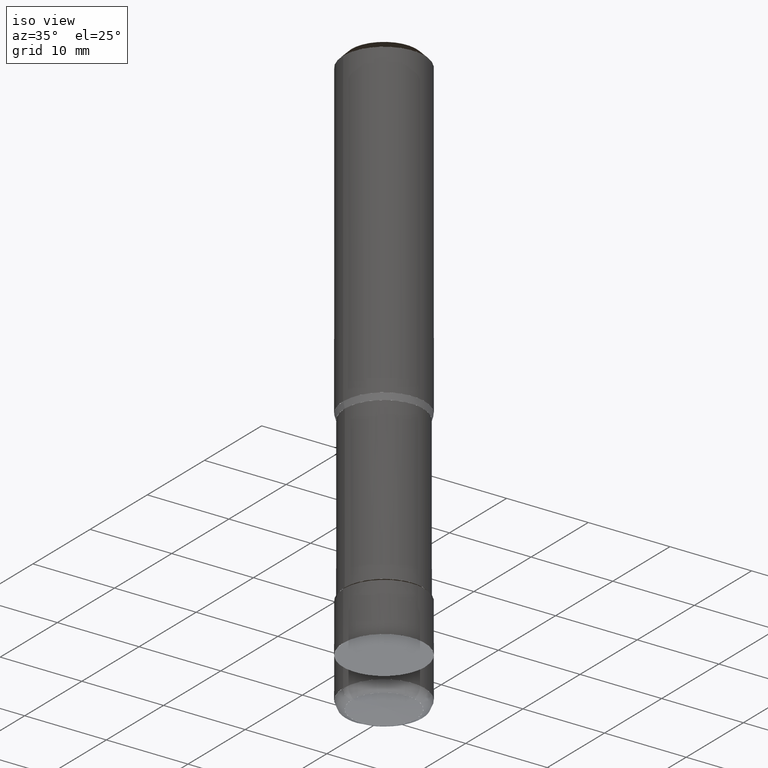
[diagram: clean part render]
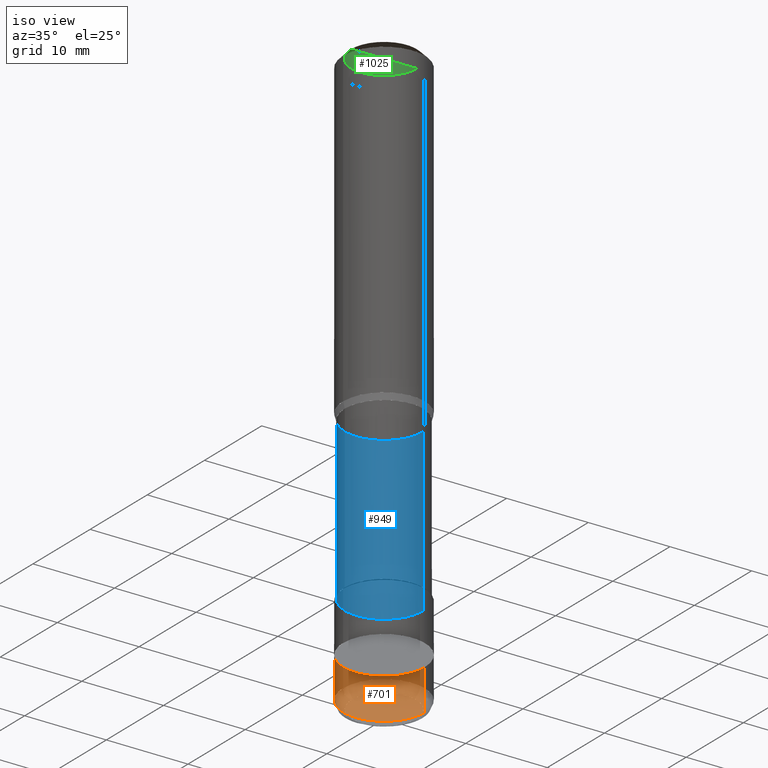
[diagram: same view with three faces highlighted in distinct colors, each labeled with its STEP entity id]
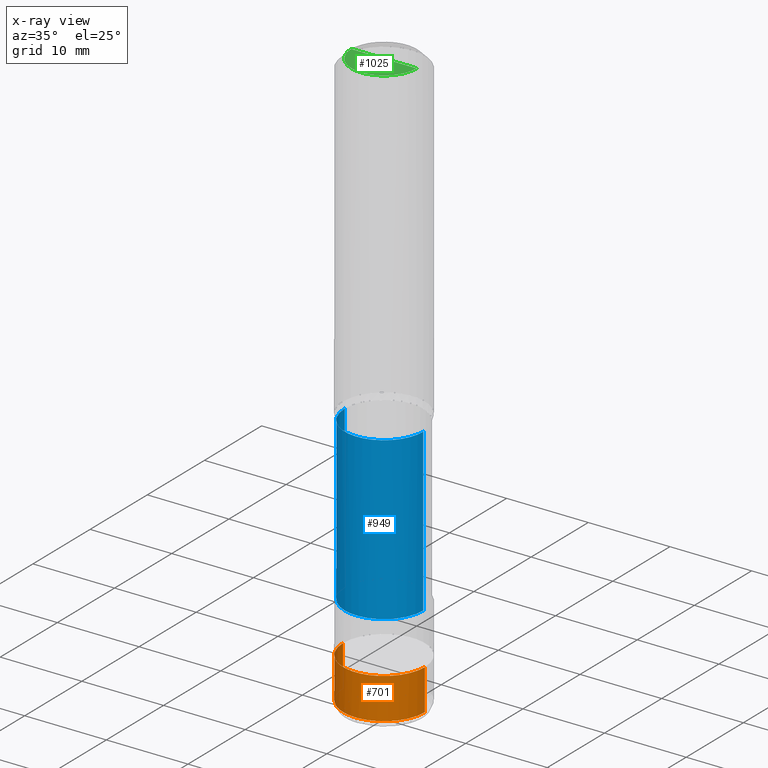
[diagram: x-ray of the same camera — body ghosted, the three highlighted faces saturated]
A machine part, iso view with three faces highlighted in distinct colors.
The next image is the same camera in x-ray (body ghosted, the three faces saturated) — at least one of them is partly hidden behind the body in this view.
Their STEP definitions:

[orange] entity #701 — the highlighted face is a freeform B-spline surface patch.
#489=CARTESIAN_POINT('',(5.0,0.0,-31.748410161514));
#493=CARTESIAN_POINT('',(-5.0,0.0,-31.748410161514));
#494=CARTESIAN_POINT('',(5.0,0.0,-26.746410161514));
#498=CARTESIAN_POINT('',(-5.0,0.0,-26.746410161514));
#512=CARTESIAN_POINT('',(-5.0,-5.0,-31.748410161514));
#513=CARTESIAN_POINT('',(0.0,-5.0,-31.748410161514));
#514=CARTESIAN_POINT('',(5.0,-5.0,-31.748410161514));
#515=CARTESIAN_POINT('',(-5.0,-5.0,-26.746410161514));
#516=CARTESIAN_POINT('',(0.0,-5.0,-26.746410161514));
#517=CARTESIAN_POINT('',(5.0,-5.0,-26.746410161514));
#682=(
BOUNDED_SURFACE()
B_SPLINE_SURFACE(1,2,(
(#493,#512,#513,#514,#489),
(#498,#515,#516,#517,#494)
), .UNSPECIFIED.,.F.,.F.,.F.)
B_SPLINE_SURFACE_WITH_KNOTS((2,2),(3,2,3),(
0.0,1.0),(
0.0,0.5,1.0), .UNSPECIFIED.)
GEOMETRIC_REPRESENTATION_ITEM()
RATIONAL_B_SPLINE_SURFACE(((1.0,0.707106781187,1.0,0.707106781187,1.0),
(1.0,0.707106781187,1.0,0.707106781187,1.0)
))
REPRESENTATION_ITEM('')
SURFACE()
);
#683=(
BOUNDED_CURVE()
B_SPLINE_CURVE(2,(#489,#514,#513,#512,#493),.UNSPECIFIED.,.F.,.F.)
B_SPLINE_CURVE_WITH_KNOTS((3,2,3),
(0.0,0.5,1.0),.UNSPECIFIED.)
CURVE()
GEOMETRIC_REPRESENTATION_ITEM()
RATIONAL_B_SPLINE_CURVE((1.0,0.707106781187,1.0,0.707106781187,1.0))
REPRESENTATION_ITEM('')
);
#684=(
BOUNDED_CURVE()
B_SPLINE_CURVE(1,(#493,#498),.UNSPECIFIED.,.F.,.F.)
B_SPLINE_CURVE_WITH_KNOTS((2,2),
(0.0,1.0),.UNSPECIFIED.)
CURVE()
GEOMETRIC_REPRESENTATION_ITEM()
RATIONAL_B_SPLINE_CURVE((1.0,1.0))
REPRESENTATION_ITEM('')
);
#685=(
BOUNDED_CURVE()
B_SPLINE_CURVE(2,(#498,#515,#516,#517,#494),.UNSPECIFIED.,.F.,.F.)
B_SPLINE_CURVE_WITH_KNOTS((3,2,3),
(0.0,0.5,1.0),.UNSPECIFIED.)
CURVE()
GEOMETRIC_REPRESENTATION_ITEM()
RATIONAL_B_SPLINE_CURVE((1.0,0.707106781187,1.0,0.707106781187,1.0))
REPRESENTATION_ITEM('')
);
#686=(
BOUNDED_CURVE()
B_SPLINE_CURVE(1,(#494,#489),.UNSPECIFIED.,.F.,.F.)
B_SPLINE_CURVE_WITH_KNOTS((2,2),
(0.0,1.0),.UNSPECIFIED.)
CURVE()
GEOMETRIC_REPRESENTATION_ITEM()
RATIONAL_B_SPLINE_CURVE((1.0,1.0))
REPRESENTATION_ITEM('')
);
#687=VERTEX_POINT('',#489);
#688=VERTEX_POINT('',#493);
#689=VERTEX_POINT('',#494);
#690=VERTEX_POINT('',#498);
#691=EDGE_CURVE('',#687,#688,#683,.T.);
#692=EDGE_CURVE('',#688,#690,#684,.T.);
#693=EDGE_CURVE('',#690,#689,#685,.T.);
#694=EDGE_CURVE('',#689,#687,#686,.T.);
#695=ORIENTED_EDGE('',*,*,#691,.T.);
#696=ORIENTED_EDGE('',*,*,#692,.T.);
#697=ORIENTED_EDGE('',*,*,#693,.T.);
#698=ORIENTED_EDGE('',*,*,#694,.T.);
#699=EDGE_LOOP('',(#695,#696,#697,#698));
#700=FACE_OUTER_BOUND('',#699,.T.);
#701=ADVANCED_FACE('',(#700),#682,.T.);

[blue] entity #949 — the highlighted face is a freeform B-spline surface patch.
#523=CARTESIAN_POINT('',(4.8,0.0,-20.546410161514));
#527=CARTESIAN_POINT('',(-4.8,0.0,-20.546410161514));
#528=CARTESIAN_POINT('',(4.8,0.0,-0.746410161514));
#532=CARTESIAN_POINT('',(-4.8,0.0,-0.746410161514));
#552=CARTESIAN_POINT('',(-4.8,-4.8,-20.546410161514));
#553=CARTESIAN_POINT('',(0.0,-4.8,-20.546410161514));
#554=CARTESIAN_POINT('',(4.8,-4.8,-20.546410161514));
#555=CARTESIAN_POINT('',(-4.8,-4.8,-0.746410161514));
#556=CARTESIAN_POINT('',(0.0,-4.8,-0.746410161514));
#557=CARTESIAN_POINT('',(4.8,-4.8,-0.746410161514));
#930=(
BOUNDED_SURFACE()
B_SPLINE_SURFACE(1,2,(
(#527,#552,#553,#554,#523),
(#532,#555,#556,#557,#528)
), .UNSPECIFIED.,.F.,.F.,.F.)
B_SPLINE_SURFACE_WITH_KNOTS((2,2),(3,2,3),(
0.0,1.0),(
0.0,0.5,1.0), .UNSPECIFIED.)
GEOMETRIC_REPRESENTATION_ITEM()
RATIONAL_B_SPLINE_SURFACE(((1.0,0.707106781187,1.0,0.707106781187,1.0),
(1.0,0.707106781187,1.0,0.707106781187,1.0)
))
REPRESENTATION_ITEM('')
SURFACE()
);
#931=(
BOUNDED_CURVE()
B_SPLINE_CURVE(2,(#523,#554,#553,#552,#527),.UNSPECIFIED.,.F.,.F.)
B_SPLINE_CURVE_WITH_KNOTS((3,2,3),
(0.0,0.5,1.0),.UNSPECIFIED.)
CURVE()
GEOMETRIC_REPRESENTATION_ITEM()
RATIONAL_B_SPLINE_CURVE((1.0,0.707106781187,1.0,0.707106781187,1.0))
REPRESENTATION_ITEM('')
);
#932=(
BOUNDED_CURVE()
B_SPLINE_CURVE(1,(#527,#532),.UNSPECIFIED.,.F.,.F.)
B_SPLINE_CURVE_WITH_KNOTS((2,2),
(0.0,1.0),.UNSPECIFIED.)
CURVE()
GEOMETRIC_REPRESENTATION_ITEM()
RATIONAL_B_SPLINE_CURVE((1.0,1.0))
REPRESENTATION_ITEM('')
);
#933=(
BOUNDED_CURVE()
B_SPLINE_CURVE(2,(#532,#555,#556,#557,#528),.UNSPECIFIED.,.F.,.F.)
B_SPLINE_CURVE_WITH_KNOTS((3,2,3),
(0.0,0.5,1.0),.UNSPECIFIED.)
CURVE()
GEOMETRIC_REPRESENTATION_ITEM()
RATIONAL_B_SPLINE_CURVE((1.0,0.707106781187,1.0,0.707106781187,1.0))
REPRESENTATION_ITEM('')
);
#934=(
BOUNDED_CURVE()
B_SPLINE_CURVE(1,(#528,#523),.UNSPECIFIED.,.F.,.F.)
B_SPLINE_CURVE_WITH_KNOTS((2,2),
(0.0,1.0),.UNSPECIFIED.)
CURVE()
GEOMETRIC_REPRESENTATION_ITEM()
RATIONAL_B_SPLINE_CURVE((1.0,1.0))
REPRESENTATION_ITEM('')
);
#935=VERTEX_POINT('',#523);
#936=VERTEX_POINT('',#527);
#937=VERTEX_POINT('',#528);
#938=VERTEX_POINT('',#532);
#939=EDGE_CURVE('',#935,#936,#931,.T.);
#940=EDGE_CURVE('',#936,#938,#932,.T.);
#941=EDGE_CURVE('',#938,#937,#933,.T.);
#942=EDGE_CURVE('',#937,#935,#934,.T.);
#943=ORIENTED_EDGE('',*,*,#939,.T.);
#944=ORIENTED_EDGE('',*,*,#940,.T.);
#945=ORIENTED_EDGE('',*,*,#941,.T.);
#946=ORIENTED_EDGE('',*,*,#942,.T.);
#947=EDGE_LOOP('',(#943,#944,#945,#946));
#948=FACE_OUTER_BOUND('',#947,.T.);
#949=ADVANCED_FACE('',(#948),#930,.T.);

[green] entity #1025 — the highlighted face is a freeform B-spline surface patch.
#543=CARTESIAN_POINT('',(4.0,0.0,39.253589838486));
#547=CARTESIAN_POINT('',(-4.0,0.0,39.253589838486));
#548=CARTESIAN_POINT('',(0.0,0.0,39.253589838486));
#564=CARTESIAN_POINT('',(-4.0,-4.0,39.253589838486));
#565=CARTESIAN_POINT('',(0.0,-4.0,39.253589838486));
#566=CARTESIAN_POINT('',(4.0,-4.0,39.253589838486));
#1010=(
BOUNDED_SURFACE()
B_SPLINE_SURFACE(1,2,(
(#547,#564,#565,#566,#543),
(#548,#548,#548,#548,#548)
), .UNSPECIFIED.,.F.,.F.,.F.)
B_SPLINE_SURFACE_WITH_KNOTS((2,2),(3,2,3),(
0.0,1.0),(
0.0,0.5,1.0), .UNSPECIFIED.)
GEOMETRIC_REPRESENTATION_ITEM()
RATIONAL_B_SPLINE_SURFACE(((1.0,0.707106781187,1.0,0.707106781187,1.0),
(1.0,0.707106781187,1.0,0.707106781187,1.0)
))
REPRESENTATION_ITEM('')
SURFACE()
);
#1011=(
BOUNDED_CURVE()
B_SPLINE_CURVE(2,(#543,#566,#565,#564,#547),.UNSPECIFIED.,.F.,.F.)
B_SPLINE_CURVE_WITH_KNOTS((3,2,3),
(0.0,0.5,1.0),.UNSPECIFIED.)
CURVE()
GEOMETRIC_REPRESENTATION_ITEM()
RATIONAL_B_SPLINE_CURVE((1.0,0.707106781187,1.0,0.707106781187,1.0))
REPRESENTATION_ITEM('')
);
#1012=(
BOUNDED_CURVE()
B_SPLINE_CURVE(1,(#547,#548),.UNSPECIFIED.,.F.,.F.)
B_SPLINE_CURVE_WITH_KNOTS((2,2),
(0.0,1.0),.UNSPECIFIED.)
CURVE()
GEOMETRIC_REPRESENTATION_ITEM()
RATIONAL_B_SPLINE_CURVE((1.0,1.0))
REPRESENTATION_ITEM('')
);
#1013=(
BOUNDED_CURVE()
B_SPLINE_CURVE(1,(#548,#543),.UNSPECIFIED.,.F.,.F.)
B_SPLINE_CURVE_WITH_KNOTS((2,2),
(0.0,1.0),.UNSPECIFIED.)
CURVE()
GEOMETRIC_REPRESENTATION_ITEM()
RATIONAL_B_SPLINE_CURVE((1.0,1.0))
REPRESENTATION_ITEM('')
);
#1014=VERTEX_POINT('',#543);
#1015=VERTEX_POINT('',#547);
#1016=VERTEX_POINT('',#548);
#1017=EDGE_CURVE('',#1014,#1015,#1011,.T.);
#1018=EDGE_CURVE('',#1015,#1016,#1012,.T.);
#1019=EDGE_CURVE('',#1016,#1014,#1013,.T.);
#1020=ORIENTED_EDGE('',*,*,#1017,.T.);
#1021=ORIENTED_EDGE('',*,*,#1018,.T.);
#1022=ORIENTED_EDGE('',*,*,#1019,.T.);
#1023=EDGE_LOOP('',(#1020,#1021,#1022));
#1024=FACE_OUTER_BOUND('',#1023,.T.);
#1025=ADVANCED_FACE('',(#1024),#1010,.T.);